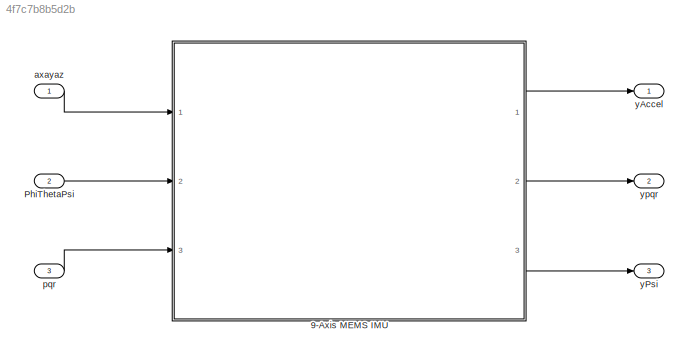
MODEL slx_4f7c7b8b5d2b
KIND model
CONFIG AbsTol = auto
CONFIG EnableMultiTasking = off
CONFIG FixedStep = auto
CONFIG MaxStep = auto
CONFIG MinStep = auto
CONFIG RelTol = 1e-3
CONFIG SampleTimeConstraint = Unconstrained
CONFIG Solver = VariableStepAuto
CONFIG SolverName = VariableStepAuto
CONFIG StartTime = 0.0
CONFIG StopTime = 10.0
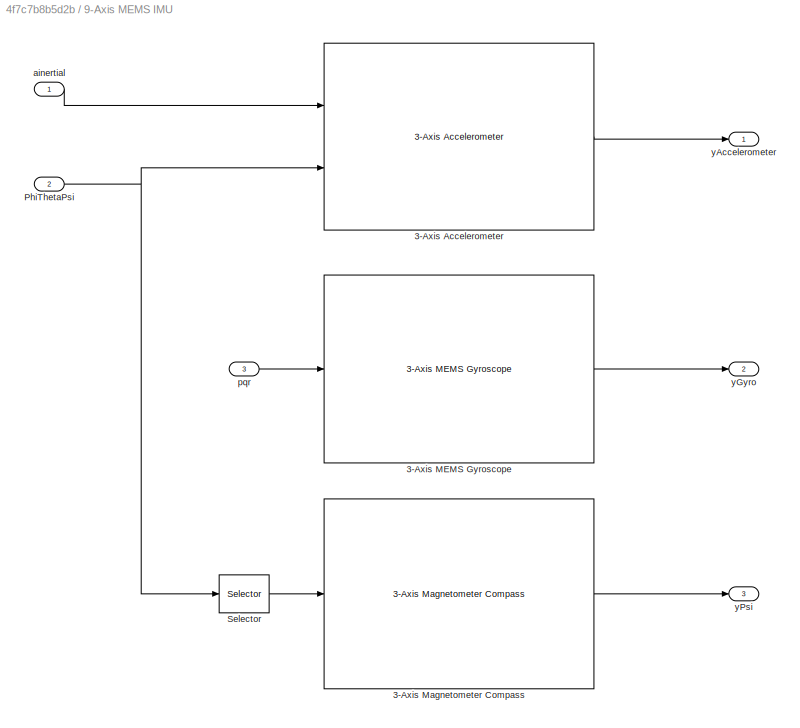
BLOCK [SubSystem] 9-Axis MEMS IMU
  Ports = [3, 3]
  RequestExecContextInheritance = off
BLOCK [Reference] 9-Axis MEMS IMU/3-Axis Accelerometer  REF=sensors/3-Axis Accelerometer  (lib defined in slx_03e243f1d19c, slx_0ec61ea8f7b5, +8 more)
  Ports = [2, 1]
  SourceBlock = sensors/3-Axis Accelerometer
BLOCK [Reference] 9-Axis MEMS IMU/3-Axis MEMS Gyroscope  REF=sensors/3-Axis MEMS Gyroscope  (lib defined in slx_03e243f1d19c, slx_0ec61ea8f7b5, +8 more)
  Ports = [1, 1]
  SourceBlock = sensors/3-Axis MEMS Gyroscope
BLOCK [Reference] 9-Axis MEMS IMU/3-Axis Magnetometer Compass  REF=sensors/3-Axis Magnetometer Compass  (lib defined in slx_03e243f1d19c, slx_0ec61ea8f7b5, +8 more)
  Ports = [1, 1]
  SourceBlock = sensors/3-Axis Magnetometer Compass
BLOCK [Inport] 9-Axis MEMS IMU/PhiThetaPsi
  IconDisplay = Port number
  Port = 2
BLOCK [Selector] 9-Axis MEMS IMU/Selector
  IndexOptions = Index vector (dialog)
  Indices = 3
  InputPortWidth = 3
  OutputSizes = 1
  Ports = [1, 1]
BLOCK [Inport] 9-Axis MEMS IMU/ainertial
  IconDisplay = Port number
BLOCK [Inport] 9-Axis MEMS IMU/pqr
  IconDisplay = Port number
  Port = 3
BLOCK [Outport] 9-Axis MEMS IMU/yAccelerometer
  IconDisplay = Port number
BLOCK [Outport] 9-Axis MEMS IMU/yGyro
  IconDisplay = Port number
  Port = 2
BLOCK [Outport] 9-Axis MEMS IMU/yPsi
  IconDisplay = Port number
  Port = 3
BLOCK [Inport] PhiThetaPsi
  IconDisplay = Port number
  Port = 2
BLOCK [Inport] axayaz
  IconDisplay = Port number
BLOCK [Inport] pqr
  IconDisplay = Port number
  Port = 3
BLOCK [Outport] yAccel
  IconDisplay = Port number
BLOCK [Outport] yPsi
  IconDisplay = Port number
  Port = 3
BLOCK [Outport] ypqr
  IconDisplay = Port number
  Port = 2
LINE 9-Axis MEMS IMU/3-Axis Accelerometer:1 -> 9-Axis MEMS IMU/yAccelerometer:1
LINE 9-Axis MEMS IMU/3-Axis MEMS Gyroscope:1 -> 9-Axis MEMS IMU/yGyro:1
LINE 9-Axis MEMS IMU/3-Axis Magnetometer Compass:1 -> 9-Axis MEMS IMU/yPsi:1
NET 9-Axis MEMS IMU/PhiThetaPsi:1 -> 9-Axis MEMS IMU/3-Axis Accelerometer:2, 9-Axis MEMS IMU/Selector:1
LINE 9-Axis MEMS IMU/Selector:1 -> 9-Axis MEMS IMU/3-Axis Magnetometer Compass:1
LINE 9-Axis MEMS IMU/ainertial:1 -> 9-Axis MEMS IMU/3-Axis Accelerometer:1
LINE 9-Axis MEMS IMU/pqr:1 -> 9-Axis MEMS IMU/3-Axis MEMS Gyroscope:1
LINE 9-Axis MEMS IMU:1 -> yAccel:1
LINE 9-Axis MEMS IMU:2 -> ypqr:1
LINE 9-Axis MEMS IMU:3 -> yPsi:1
LINE PhiThetaPsi:1 -> 9-Axis MEMS IMU:2
LINE axayaz:1 -> 9-Axis MEMS IMU:1
LINE pqr:1 -> 9-Axis MEMS IMU:3
note: NET lines group one-source signal fan-out (src -> all destinations, sorted); 1:1 wires keep LINE
